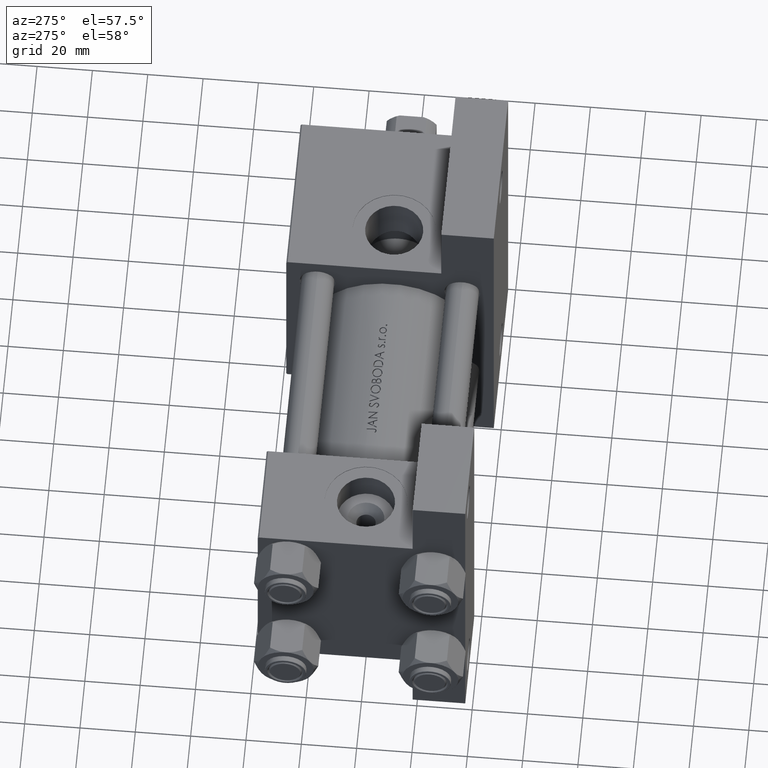
[diagram: clean part render]
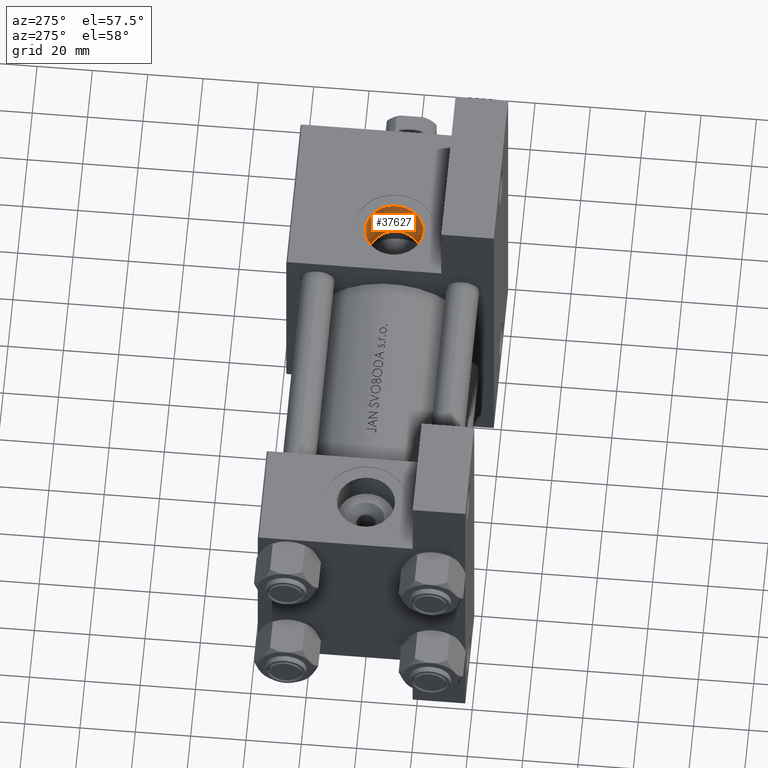
[diagram: same view with one face highlighted and labeled with its STEP entity id]
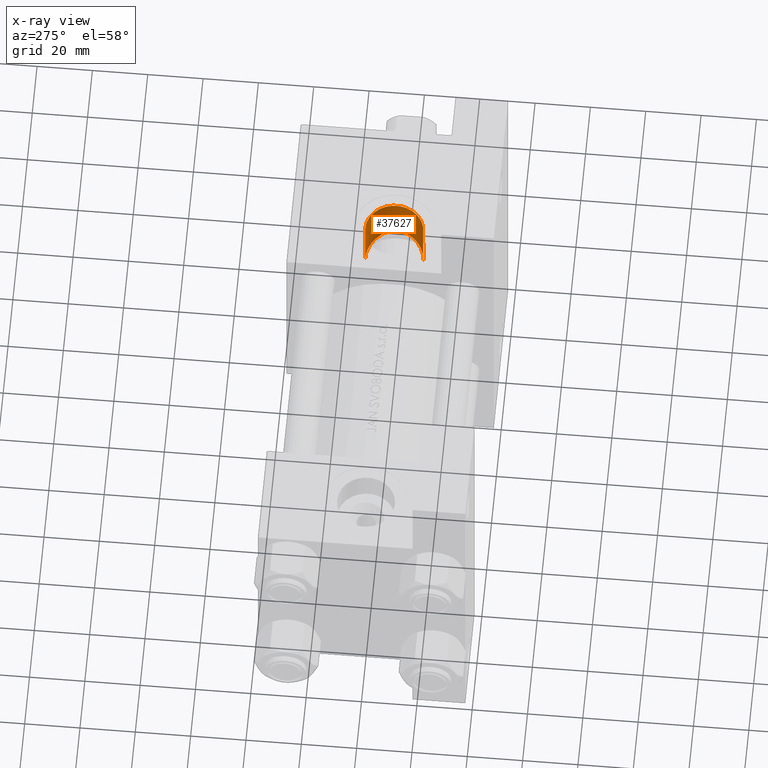
[diagram: x-ray of the same camera — body ghosted, the highlighted face saturated]
A machine part, auxiliary view. The second image highlights one B-rep face of the part: STEP entity #37627.
The next image is the same camera in x-ray: the body ghosted, the highlighted face saturated — about 0% of this face is hidden behind the body in this view.
In plain terms, the highlighted cylindrical surface (edge-blend (fillet) strip) has radius 10.48 mm, axis along (-0, -0, 1).
Its self-contained STEP definition (entity closure, byte-faithful):
#83 = DIRECTION ( 'NONE',  ( 0.000000000000000000, 0.000000000000000000, -1.000000000000000000 ) ) ;
#1180 = CARTESIAN_POINT ( 'NONE',  ( 145.1488622720015371, -20.39261420473474118, -2.705221023230773181 ) ) ;
#1671 = CARTESIAN_POINT ( 'NONE',  ( 143.8632463434475710, -19.57285682509593983, 5.602446212762897559 ) ) ;
#1918 = CARTESIAN_POINT ( 'NONE',  ( 143.3225662003737853, -19.64111042044597610, -6.378170050295205229 ) ) ;
#2159 = CARTESIAN_POINT ( 'NONE',  ( 143.2943842801270762, -19.29805340160767102, 6.441284550439727141 ) ) ;
#3339 = EDGE_CURVE ( 'NONE', #4089, #21074, #39741, .T. ) ;
#4089 = VERTEX_POINT ( 'NONE', #46975 ) ;
#4354 = DIRECTION ( 'NONE',  ( 0.000000000000000000, 0.000000000000000000, -1.000000000000000000 ) ) ;
#4845 = ORIENTED_EDGE ( 'NONE', *, *, #8907, .T. ) ;
#5158 = ORIENTED_EDGE ( 'NONE', *, *, #45417, .F. ) ;
#5164 = CARTESIAN_POINT ( 'NONE',  ( 135.3524141148301396, -17.90669148670408362, -10.47999999999997911 ) ) ;
#5408 = CARTESIAN_POINT ( 'NONE',  ( 144.0783182432222134, -19.94519646484592812, -5.247152792081113404 ) ) ;
#6232 = AXIS2_PLACEMENT_3D ( 'NONE', #42196, #27533, #4354 ) ;
#6301 = AXIS2_PLACEMENT_3D ( 'NONE', #12536, #19751, #83 ) ;
#7673 = CARTESIAN_POINT ( 'NONE',  ( 135.3470210746792759, -17.31154528053460595, 10.47999999999999332 ) ) ;
#8052 = FACE_OUTER_BOUND ( 'NONE', #35883, .T. ) ;
#8164 = CARTESIAN_POINT ( 'NONE',  ( 136.3951252308203266, -17.36667489365846251, 10.39267281819420141 ) ) ;
#8907 = EDGE_CURVE ( 'NONE', #18662, #4089, #30133, .T. ) ;
#9389 = CARTESIAN_POINT ( 'NONE',  ( 142.8679744497729871, -19.10325731143033323, 6.954996736502842225 ) ) ;
#9397 = CIRCLE ( 'NONE', #6232, 10.47999999999998622 ) ;
#9638 = CARTESIAN_POINT ( 'NONE',  ( 145.4776551375226177, -20.48265569949338172, 0.4117595292702403431 ) ) ;
#11410 = CARTESIAN_POINT ( 'NONE',  ( 135.0000000000000000, -17.31154528053461306, 10.47999999999999154 ) ) ;
#12536 = CARTESIAN_POINT ( 'NONE',  ( 135.0000000000000000, 37.50100000000000477, 9.974746723040443104E-15 ) ) ;
#12643 = CARTESIAN_POINT ( 'NONE',  ( 144.3662177968320748, -19.82832408839750116, 4.713768309937345080 ) ) ;
#13131 = CARTESIAN_POINT ( 'NONE',  ( 144.4025389929008441, -20.07976061505709708, -4.641199740976984955 ) ) ;
#13349 = CARTESIAN_POINT ( 'NONE',  ( 135.0000000000000000, 37.50100000000000477, -10.47999999999997556 ) ) ;
#13373 = CARTESIAN_POINT ( 'NONE',  ( 139.6885837709134535, -18.47081169218747831, -9.397559365377061269 ) ) ;
#13621 = CARTESIAN_POINT ( 'NONE',  ( 143.9026386617617845, -19.87300753805845943, -5.539771893847146522 ) ) ;
#15470 = CARTESIAN_POINT ( 'NONE',  ( 135.0000000000000000, -37.29999999999999716, -10.47999999999998266 ) ) ;
#15692 = VERTEX_POINT ( 'NONE', #42705 ) ;
#16870 = CARTESIAN_POINT ( 'NONE',  ( 145.4669051482524651, -20.50255402113293712, -0.6300211231001643375 ) ) ;
#17112 = CARTESIAN_POINT ( 'NONE',  ( 145.1175830810126115, -20.24111318549747551, 2.820020607438575411 ) ) ;
#17356 = CARTESIAN_POINT ( 'NONE',  ( 144.0415136392023783, -19.66186875787549226, 5.310054482731724868 ) ) ;
#18662 = VERTEX_POINT ( 'NONE', #27046 ) ;
#19612 = CARTESIAN_POINT ( 'NONE',  ( 141.3953719826939732, -18.50579674927558926, 8.329556230503520453 ) ) ;
#19751 = DIRECTION ( 'NONE',  ( -0.000000000000000000, -1.000000000000000000, -8.673617379884036705E-17 ) ) ;
#20350 = CARTESIAN_POINT ( 'NONE',  ( 135.7047145583874794, -17.91665127801143953, -10.46219065497899514 ) ) ;
#21074 = VERTEX_POINT ( 'NONE', #15470 ) ;
#21094 = CARTESIAN_POINT ( 'NONE',  ( 145.4015008588858109, -20.48626732390679450, -1.327331865308764014 ) ) ;
#22857 = CARTESIAN_POINT ( 'NONE',  ( 135.6954312938288751, -17.32248566803110990, 10.46281023584331216 ) ) ;
#22986 = CARTESIAN_POINT ( 'NONE',  ( 135.0000000000000000, 37.50100000000000477, 10.47999999999999687 ) ) ;
#22990 = CYLINDRICAL_SURFACE ( 'NONE', #6301, 10.47999999999998622 ) ;
#23359 = CARTESIAN_POINT ( 'NONE',  ( 139.6848851208463884, -17.95378683072778614, 9.399761861338275182 ) ) ;
#24335 = CARTESIAN_POINT ( 'NONE',  ( 136.7534701870719402, -17.98521153983803345, -10.33810977386607455 ) ) ;
#24593 = CARTESIAN_POINT ( 'NONE',  ( 142.6611621740133273, -19.38999619374664363, -7.159076384942103743 ) ) ;
#24842 = CARTESIAN_POINT ( 'NONE',  ( 145.4819445000525491, -20.50178181377810560, -0.2822101851753028856 ) ) ;
#25080 = CARTESIAN_POINT ( 'NONE',  ( 136.4044395936603848, -17.95581939429250795, -10.39141979412304373 ) ) ;
#27046 = CARTESIAN_POINT ( 'NONE',  ( 135.0000000000000000, -17.31154528053461306, 10.47999999999999154 ) ) ;
#27485 = LINE ( 'NONE', #22986, #27925 ) ;
#27533 = DIRECTION ( 'NONE',  ( 0.000000000000000000, -1.000000000000000000, -8.673617379884036705E-17 ) ) ;
#27844 = CARTESIAN_POINT ( 'NONE',  ( 140.2983228447828310, -18.62849765410346592, -9.067371222007592380 ) ) ;
#27925 = VECTOR ( 'NONE', #42149, 1000.000000000000000 ) ;
#28326 = CARTESIAN_POINT ( 'NONE',  ( 145.3507038963579419, -20.46901633175582447, -1.677836523642096012 ) ) ;
#28577 = CARTESIAN_POINT ( 'NONE',  ( 145.3852102648228595, -20.41012014665354002, 1.448585321857996044 ) ) ;
#28824 = CARTESIAN_POINT ( 'NONE',  ( 142.8913372837819509, -19.47582360453931116, -6.904560610471913940 ) ) ;
#30133 = B_SPLINE_CURVE_WITH_KNOTS ( 'NONE', 3,
 ( #11410, #7673, #22857, #8164, #45743, #38281, #46002, #23359, #38527, #19612, #47238, #9389, #2159, #1671, #17356, #12643, #32542, #46990, #17112, #47733, #28577, #32054, #9638, #24842, #16870, #21094, #28326, #1180, #32296, #43736, #13131, #5408, #13621, #43486, #1918, #28824, #24593, #36023, #47486, #27844, #13373, #46744, #35774, #24335, #25080, #20350, #5164, #39764 ),
 .UNSPECIFIED., .F., .F.,
 ( 4, 2, 2, 2, 2, 2, 2, 2, 2, 2, 2, 2, 2, 2, 2, 2, 2, 2, 2, 2, 2, 2, 2, 4 ),
 ( 0.03337172289375580497, 0.03441233523662729638, 0.03545294757949879472, 0.03753417226524177752, 0.03961539695098476727, 0.04169662163672775701, 0.04377784632247074675, 0.04481845866534223816, 0.04585907100821373650, 0.04794029569395671930, 0.04898090803682821764, 0.05002152037969971599, 0.05106213272257120739, 0.05210274506544269879, 0.05418396975118568853, 0.05522458209405718688, 0.05626519443692867828, 0.05730580677980016968, 0.05834641912267166108, 0.06042764380841471328, 0.06250886849415775159, 0.06459009317990080379, 0.06563070552277236458, 0.06667131786564392537 ),
 .UNSPECIFIED. ) ;
#30711 = VECTOR ( 'NONE', #39492, 1000.000000000000000 ) ;
#32054 = CARTESIAN_POINT ( 'NONE',  ( 145.4583245133796936, -20.46430137750835954, 0.7579182357777477508 ) ) ;
#32296 = CARTESIAN_POINT ( 'NONE',  ( 144.9485359727863738, -20.30891902702525798, -3.366903607565237433 ) ) ;
#32542 = CARTESIAN_POINT ( 'NONE',  ( 144.5136165929028493, -19.90621515629140248, 4.408684660160840707 ) ) ;
#35371 = EDGE_CURVE ( 'NONE', #21074, #15692, #9397, .T. ) ;
#35774 = CARTESIAN_POINT ( 'NONE',  ( 137.7750123670571440, -18.09812027575559057, -10.12979723076933425 ) ) ;
#35883 = EDGE_LOOP ( 'NONE', ( #5158, #4845, #39867, #48286 ) ) ;
#36023 = CARTESIAN_POINT ( 'NONE',  ( 141.9416544847751425, -19.13207627753017093, -7.880695095096319491 ) ) ;
#37627 = ADVANCED_FACE ( 'NONE', ( #8052 ), #22990, .F. ) ;
#38281 = CARTESIAN_POINT ( 'NONE',  ( 137.7588417203788538, -17.52693762274574496, 10.13402779325156899 ) ) ;
#38527 = CARTESIAN_POINT ( 'NONE',  ( 140.2787600379286346, -18.12953982762253702, 9.078379935655647159 ) ) ;
#39492 = DIRECTION ( 'NONE',  ( -0.000000000000000000, -1.000000000000000000, -8.673617379884036705E-17 ) ) ;
#39741 = LINE ( 'NONE', #13349, #30711 ) ;
#39764 = CARTESIAN_POINT ( 'NONE',  ( 135.0000000000000000, -17.90669148670408362, -10.47999999999998089 ) ) ;
#39867 = ORIENTED_EDGE ( 'NONE', *, *, #3339, .T. ) ;
#42149 = DIRECTION ( 'NONE',  ( -0.000000000000000000, -1.000000000000000000, -8.673617379884036705E-17 ) ) ;
#42196 = CARTESIAN_POINT ( 'NONE',  ( 135.0000000000000000, -37.29999999999999716, 3.486794186713383443E-15 ) ) ;
#42705 = CARTESIAN_POINT ( 'NONE',  ( 135.0000000000000000, -37.29999999999999716, 10.47999999999998977 ) ) ;
#43486 = CARTESIAN_POINT ( 'NONE',  ( 143.5247630629395985, -19.72096722719660988, -6.105281524917133495 ) ) ;
#43736 = CARTESIAN_POINT ( 'NONE',  ( 144.5516556862484947, -20.14238090880649779, -4.326202217588882348 ) ) ;
#45417 = EDGE_CURVE ( 'NONE', #18662, #15692, #27485, .T. ) ;
#45743 = CARTESIAN_POINT ( 'NONE',  ( 136.7410054315663785, -17.39963274831551132, 10.34017078318249361 ) ) ;
#46002 = CARTESIAN_POINT ( 'NONE',  ( 138.4159050215026525, -17.65012615064442869, 9.931528811289364711 ) ) ;
#46744 = CARTESIAN_POINT ( 'NONE',  ( 138.4291236246859285, -18.20648317701849095, -9.926633415679276595 ) ) ;
#46975 = CARTESIAN_POINT ( 'NONE',  ( 135.0000000000000000, -17.90669148670408362, -10.47999999999998089 ) ) ;
#46990 = CARTESIAN_POINT ( 'NONE',  ( 144.9112922687108380, -20.12166452589492138, 3.472274471029888954 ) ) ;
#47238 = CARTESIAN_POINT ( 'NONE',  ( 141.9208345979154728, -18.70786800614511236, 7.898040897294846374 ) ) ;
#47486 = CARTESIAN_POINT ( 'NONE',  ( 141.4217440813015401, -18.95863385658994815, -8.309672003124298101 ) ) ;
#47733 = CARTESIAN_POINT ( 'NONE',  ( 145.3311065042815073, -20.37409322011633250, 1.794586109409245678 ) ) ;
#48286 = ORIENTED_EDGE ( 'NONE', *, *, #35371, .T. ) ;